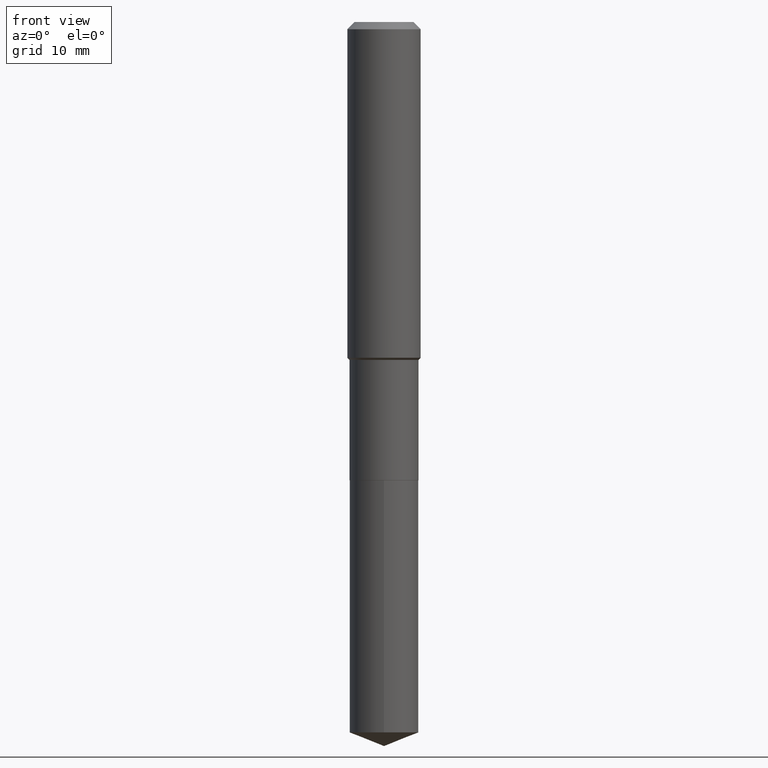
[diagram: clean part render]
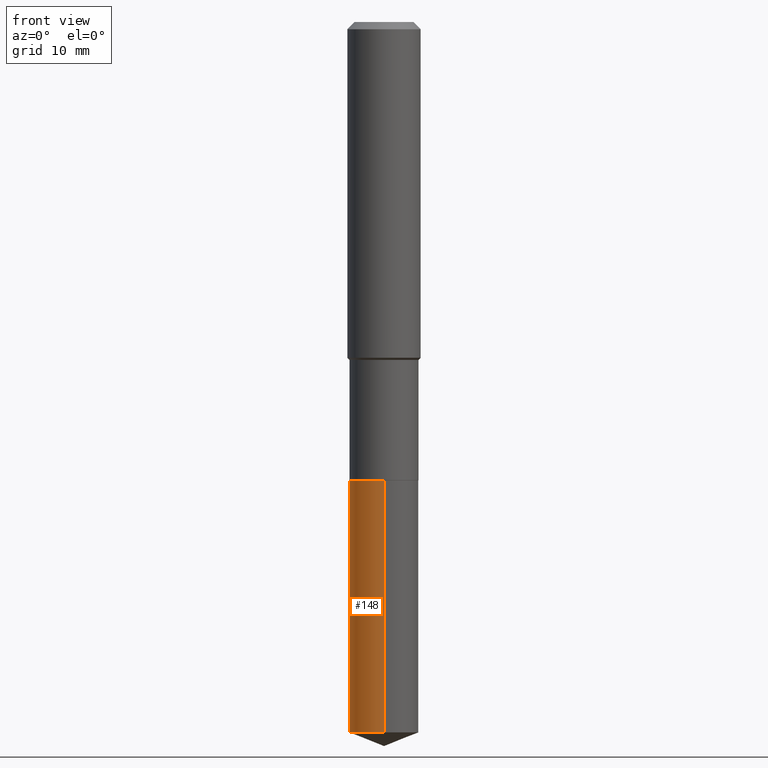
[diagram: same view with one face highlighted and labeled with its STEP entity id]
A machine part, front view. The second image highlights one B-rep face of the part: STEP entity #148.
In plain terms, the highlighted cylindrical surface (edge-blend (fillet) strip) has radius 3.7706 mm, axis along (-0, 0, 1).
Its self-contained STEP definition (entity closure, byte-faithful):
#2 = DIRECTION ( 'NONE',  ( -2.445217522650849681E-29, 3.491841191166415000E-15, 1.000000000000000000 ) ) ;
#22 = EDGE_LOOP ( 'NONE', ( #258, #117, #34, #315 ) ) ;
#24 = DIRECTION ( 'NONE',  ( -2.445217522650849681E-29, 3.491841191166415000E-15, 1.000000000000000000 ) ) ;
#34 = ORIENTED_EDGE ( 'NONE', *, *, #87, .T. ) ;
#58 = CARTESIAN_POINT ( 'NONE',  ( 1.054800691235942672E-15, 0.1484499999999892572, -3.051723989894963296 ) ) ;
#78 = VERTEX_POINT ( 'NONE', #58 ) ;
#87 = EDGE_CURVE ( 'NONE', #327, #191, #151, .T. ) ;
#117 = ORIENTED_EDGE ( 'NONE', *, *, #164, .T. ) ;
#144 = VECTOR ( 'NONE', #368, 39.37007874015748143 ) ;
#145 = DIRECTION ( 'NONE',  ( -6.982962677686265133E-15, -1.000000000000000000, 3.680495781292372402E-15 ) ) ;
#148 = ADVANCED_FACE ( 'NONE', ( #406 ), #220, .T. ) ;
#151 = LINE ( 'NONE', #436, #178 ) ;
#164 = EDGE_CURVE ( 'NONE', #78, #327, #404, .T. ) ;
#178 = VECTOR ( 'NONE', #2, 39.37007874015748143 ) ;
#191 = VERTEX_POINT ( 'NONE', #386 ) ;
#220 = CYLINDRICAL_SURFACE ( 'NONE', #224, 0.1484499999999999986 ) ;
#224 = AXIS2_PLACEMENT_3D ( 'NONE', #356, #24, #145 ) ;
#235 = CARTESIAN_POINT ( 'NONE',  ( 1.054800691235916639E-15, 0.1484499999999931152, -1.968500000000000583 ) ) ;
#236 = DIRECTION ( 'NONE',  ( -6.982962677686265133E-15, -1.000000000000000000, 3.680495781292372402E-15 ) ) ;
#241 = CARTESIAN_POINT ( 'NONE',  ( 4.813905344975441835E-29, -6.872981015512731707E-15, -1.968500000000000139 ) ) ;
#253 = EDGE_CURVE ( 'NONE', #78, #480, #371, .T. ) ;
#258 = ORIENTED_EDGE ( 'NONE', *, *, #253, .F. ) ;
#267 = CIRCLE ( 'NONE', #385, 0.1484499999999999986 ) ;
#294 = DIRECTION ( 'NONE',  ( -6.982962677686265133E-15, -1.000000000000000000, 3.680495781292373191E-15 ) ) ;
#306 = CARTESIAN_POINT ( 'NONE',  ( -1.036620809502450954E-15, -0.1484500000000105457, -3.051723989894962408 ) ) ;
#315 = ORIENTED_EDGE ( 'NONE', *, *, #318, .F. ) ;
#318 = EDGE_CURVE ( 'NONE', #480, #191, #267, .T. ) ;
#327 = VERTEX_POINT ( 'NONE', #306 ) ;
#335 = AXIS2_PLACEMENT_3D ( 'NONE', #483, #439, #294 ) ;
#351 = CARTESIAN_POINT ( 'NONE',  ( 1.054800691235943263E-15, 0.1484499999999930875, -1.968500000000000583 ) ) ;
#356 = CARTESIAN_POINT ( 'NONE',  ( 4.813905344975441835E-29, -6.872981015512731707E-15, -1.968500000000000139 ) ) ;
#368 = DIRECTION ( 'NONE',  ( -2.445217522650849681E-29, 3.491841191166415000E-15, 1.000000000000000000 ) ) ;
#371 = LINE ( 'NONE', #235, #144 ) ;
#385 = AXIS2_PLACEMENT_3D ( 'NONE', #241, #420, #236 ) ;
#386 = CARTESIAN_POINT ( 'NONE',  ( -1.036620809502477972E-15, -0.1484500000000068820, -1.968499999999999472 ) ) ;
#404 = CIRCLE ( 'NONE', #335, 0.1484499999999999709 ) ;
#406 = FACE_OUTER_BOUND ( 'NONE', #22, .T. ) ;
#420 = DIRECTION ( 'NONE',  ( -2.445217522650849681E-29, 3.491841191166415000E-15, 1.000000000000000000 ) ) ;
#436 = CARTESIAN_POINT ( 'NONE',  ( -1.036620809502477972E-15, -0.1484500000000068820, -1.968499999999999472 ) ) ;
#439 = DIRECTION ( 'NONE',  ( -2.445217522650849681E-29, 3.491841191166415000E-15, 1.000000000000000000 ) ) ;
#480 = VERTEX_POINT ( 'NONE', #351 ) ;
#483 = CARTESIAN_POINT ( 'NONE',  ( 7.462623626022371955E-29, -1.065542716268759565E-14, -3.051723989894962852 ) ) ;